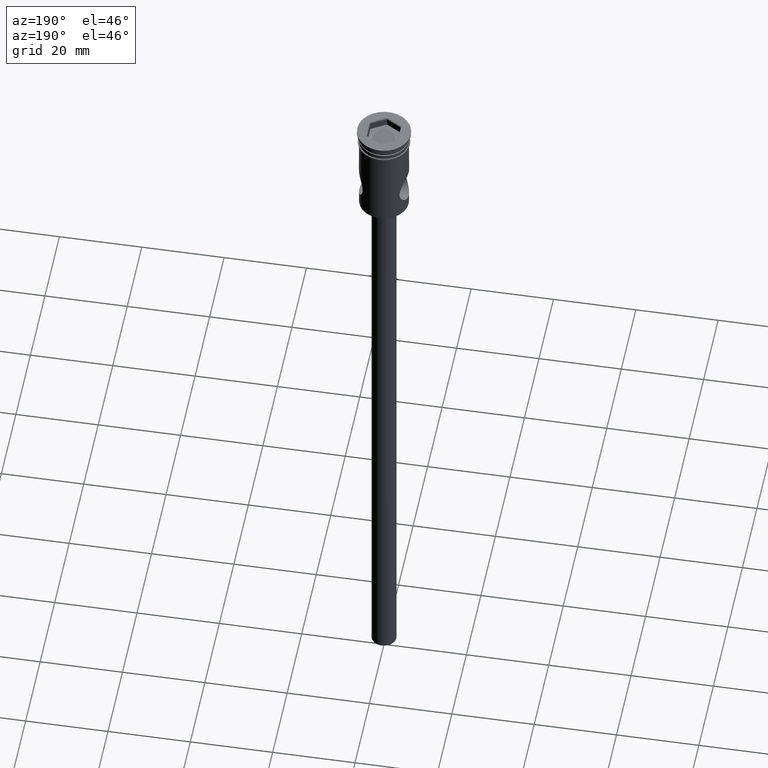
[diagram: clean part render]
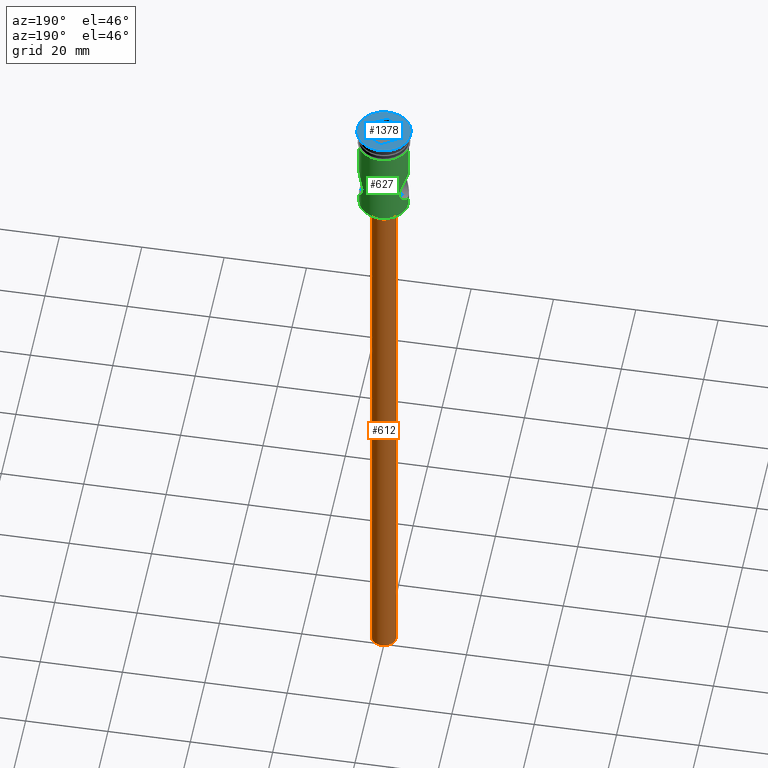
[diagram: same view with three faces highlighted in distinct colors, each labeled with its STEP entity id]
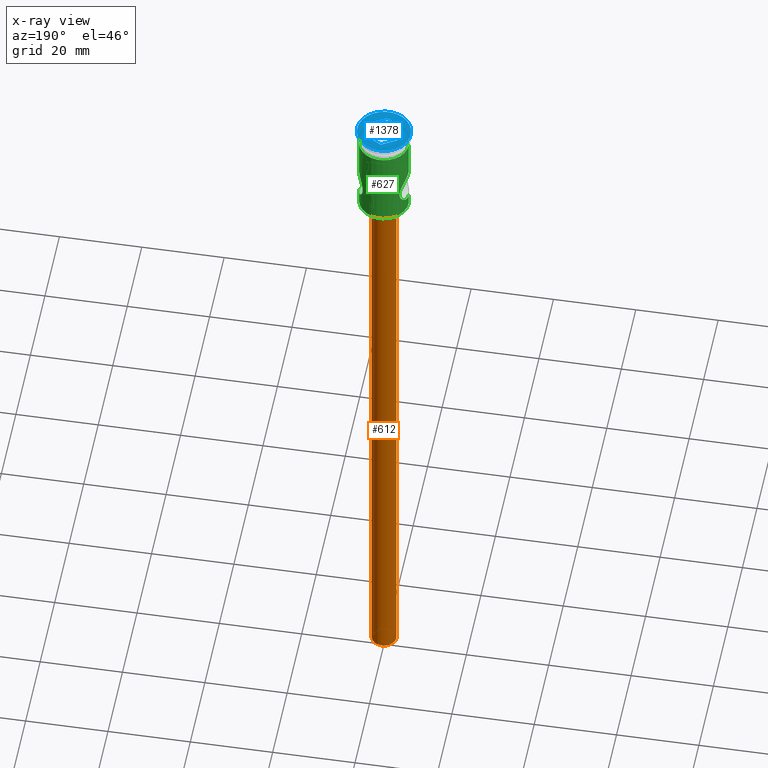
[diagram: x-ray of the same camera — body ghosted, the three highlighted faces saturated]
A machine part, auxiliary view with three faces highlighted in distinct colors.
The next image is the same camera in x-ray (body ghosted, the three faces saturated) — at least one of them is partly hidden behind the body in this view.
Their STEP definitions:

[orange] entity #612 — the highlighted cylindrical surface (edge-blend (fillet) strip) has radius 3 mm, axis along (-0, -0, 1).
#10 = DIRECTION ( 'NONE',  ( -1.000000000000000000, 0.000000000000000000, 0.000000000000000000 ) ) ;
#25 = CARTESIAN_POINT ( 'NONE',  ( 0.000000000000000000, 0.000000000000000000, -27.00000000000000000 ) ) ;
#69 = CARTESIAN_POINT ( 'NONE',  ( 0.000000000000000000, 0.000000000000000000, -174.0000000000000000 ) ) ;
#101 = ORIENTED_EDGE ( 'NONE', *, *, #1307, .F. ) ;
#259 = AXIS2_PLACEMENT_3D ( 'NONE', #25, #680, #10 ) ;
#265 = LINE ( 'NONE', #841, #981 ) ;
#309 = EDGE_LOOP ( 'NONE', ( #944, #556, #578, #101 ) ) ;
#332 = CIRCLE ( 'NONE', #259, 3.000000000000000444 ) ;
#386 = CYLINDRICAL_SURFACE ( 'NONE', #1319, 3.000000000000000444 ) ;
#394 = EDGE_CURVE ( 'NONE', #1001, #1064, #746, .T. ) ;
#399 = DIRECTION ( 'NONE',  ( 0.000000000000000000, 0.000000000000000000, -1.000000000000000000 ) ) ;
#488 = EDGE_CURVE ( 'NONE', #1064, #1245, #332, .T. ) ;
#489 = DIRECTION ( 'NONE',  ( 1.000000000000000000, 0.000000000000000000, 0.000000000000000000 ) ) ;
#499 = VECTOR ( 'NONE', #540, 1000.000000000000000 ) ;
#540 = DIRECTION ( 'NONE',  ( -0.000000000000000000, -0.000000000000000000, 1.000000000000000000 ) ) ;
#556 = ORIENTED_EDGE ( 'NONE', *, *, #394, .T. ) ;
#578 = ORIENTED_EDGE ( 'NONE', *, *, #488, .T. ) ;
#580 = FACE_OUTER_BOUND ( 'NONE', #309, .T. ) ;
#612 = ADVANCED_FACE ( 'NONE', ( #580 ), #386, .T. ) ;
#680 = DIRECTION ( 'NONE',  ( 0.000000000000000000, 0.000000000000000000, -1.000000000000000000 ) ) ;
#696 = VERTEX_POINT ( 'NONE', #947 ) ;
#746 = LINE ( 'NONE', #985, #499 ) ;
#841 = CARTESIAN_POINT ( 'NONE',  ( 3.000000000000000444, 0.000000000000000000, -174.0000000000000000 ) ) ;
#944 = ORIENTED_EDGE ( 'NONE', *, *, #1409, .F. ) ;
#947 = CARTESIAN_POINT ( 'NONE',  ( 3.000000000000000444, 0.000000000000000000, -174.0000000000000000 ) ) ;
#981 = VECTOR ( 'NONE', #1412, 1000.000000000000000 ) ;
#985 = CARTESIAN_POINT ( 'NONE',  ( -3.000000000000000444, 3.673940397442060361E-16, -174.0000000000000000 ) ) ;
#1001 = VERTEX_POINT ( 'NONE', #1303 ) ;
#1064 = VERTEX_POINT ( 'NONE', #1240 ) ;
#1065 = CARTESIAN_POINT ( 'NONE',  ( 3.000000000000000444, 0.000000000000000000, -27.00000000000000000 ) ) ;
#1106 = DIRECTION ( 'NONE',  ( -1.000000000000000000, 0.000000000000000000, 0.000000000000000000 ) ) ;
#1130 = CIRCLE ( 'NONE', #1320, 3.000000000000000444 ) ;
#1194 = DIRECTION ( 'NONE',  ( -0.000000000000000000, -0.000000000000000000, 1.000000000000000000 ) ) ;
#1240 = CARTESIAN_POINT ( 'NONE',  ( -3.000000000000000444, 3.673940397442060361E-16, -27.00000000000000000 ) ) ;
#1245 = VERTEX_POINT ( 'NONE', #1065 ) ;
#1303 = CARTESIAN_POINT ( 'NONE',  ( -3.000000000000000444, 3.673940397442060361E-16, -174.0000000000000000 ) ) ;
#1307 = EDGE_CURVE ( 'NONE', #696, #1245, #265, .T. ) ;
#1319 = AXIS2_PLACEMENT_3D ( 'NONE', #69, #1194, #489 ) ;
#1320 = AXIS2_PLACEMENT_3D ( 'NONE', #1442, #399, #1106 ) ;
#1409 = EDGE_CURVE ( 'NONE', #1001, #696, #1130, .T. ) ;
#1412 = DIRECTION ( 'NONE',  ( -0.000000000000000000, -0.000000000000000000, 1.000000000000000000 ) ) ;
#1442 = CARTESIAN_POINT ( 'NONE',  ( 0.000000000000000000, 0.000000000000000000, -174.0000000000000000 ) ) ;

[blue] entity #1378 — the highlighted planar face has unit normal (0, -0, 1).
#8 = CARTESIAN_POINT ( 'NONE',  ( 0.000000000000000000, 0.000000000000000000, 0.000000000000000000 ) ) ;
#14 = EDGE_LOOP ( 'NONE', ( #299, #769, #1452, #1261, #191, #542 ) ) ;
#42 = VECTOR ( 'NONE', #743, 1000.000000000000000 ) ;
#67 = DIRECTION ( 'NONE',  ( -2.030154863158322842E-16, -1.000000000000000000, 0.000000000000000000 ) ) ;
#77 = CARTESIAN_POINT ( 'NONE',  ( -3.899999999999994138, 2.251666049839537109, 0.000000000000000000 ) ) ;
#79 = FACE_OUTER_BOUND ( 'NONE', #1456, .T. ) ;
#90 = LINE ( 'NONE', #189, #1169 ) ;
#102 = CIRCLE ( 'NONE', #873, 6.500000000000000000 ) ;
#106 = AXIS2_PLACEMENT_3D ( 'NONE', #1347, #193, #1095 ) ;
#140 = ORIENTED_EDGE ( 'NONE', *, *, #843, .T. ) ;
#145 = AXIS2_PLACEMENT_3D ( 'NONE', #761, #523, #648 ) ;
#189 = CARTESIAN_POINT ( 'NONE',  ( 0.09999999999999689693, -4.445597072760113733, 0.000000000000000000 ) ) ;
#191 = ORIENTED_EDGE ( 'NONE', *, *, #1263, .T. ) ;
#193 = DIRECTION ( 'NONE',  ( 0.000000000000000000, -0.000000000000000000, 1.000000000000000000 ) ) ;
#225 = CARTESIAN_POINT ( 'NONE',  ( 3.899999999999994138, 2.251666049839536665, 0.000000000000000000 ) ) ;
#233 = VERTEX_POINT ( 'NONE', #77 ) ;
#236 = VERTEX_POINT ( 'NONE', #513 ) ;
#246 = CARTESIAN_POINT ( 'NONE',  ( 3.799999999999997602, 2.309401076758497595, 0.000000000000000000 ) ) ;
#298 = ORIENTED_EDGE ( 'NONE', *, *, #373, .T. ) ;
#299 = ORIENTED_EDGE ( 'NONE', *, *, #1088, .T. ) ;
#301 = EDGE_CURVE ( 'NONE', #628, #1185, #90, .T. ) ;
#373 = EDGE_CURVE ( 'NONE', #236, #555, #1060, .T. ) ;
#378 = LINE ( 'NONE', #952, #655 ) ;
#400 = LINE ( 'NONE', #882, #42 ) ;
#452 = VERTEX_POINT ( 'NONE', #1284 ) ;
#470 = VERTEX_POINT ( 'NONE', #225 ) ;
#513 = CARTESIAN_POINT ( 'NONE',  ( -6.500000000000000000, 7.960204194457795477E-16, 0.000000000000000000 ) ) ;
#523 = DIRECTION ( 'NONE',  ( -0.000000000000000000, -0.000000000000000000, 1.000000000000000000 ) ) ;
#536 = PLANE ( 'NONE',  #106 ) ;
#542 = ORIENTED_EDGE ( 'NONE', *, *, #301, .T. ) ;
#546 = EDGE_CURVE ( 'NONE', #452, #470, #1059, .T. ) ;
#555 = VERTEX_POINT ( 'NONE', #1266 ) ;
#628 = VERTEX_POINT ( 'NONE', #733 ) ;
#648 = DIRECTION ( 'NONE',  ( 1.000000000000000000, 0.000000000000000000, 0.000000000000000000 ) ) ;
#655 = VECTOR ( 'NONE', #1186, 1000.000000000000114 ) ;
#667 = DIRECTION ( 'NONE',  ( -0.8660254037844388186, -0.4999999999999997780, 0.000000000000000000 ) ) ;
#679 = DIRECTION ( 'NONE',  ( -0.000000000000000000, -0.000000000000000000, 1.000000000000000000 ) ) ;
#733 = CARTESIAN_POINT ( 'NONE',  ( 3.899999999999993250, -2.251666049839539330, 0.000000000000000000 ) ) ;
#742 = FACE_BOUND ( 'NONE', #14, .T. ) ;
#743 = DIRECTION ( 'NONE',  ( -0.8660254037844387076, 0.4999999999999998890, 0.000000000000000000 ) ) ;
#751 = VECTOR ( 'NONE', #1384, 1000.000000000000000 ) ;
#761 = CARTESIAN_POINT ( 'NONE',  ( 0.000000000000000000, 0.000000000000000000, 0.000000000000000000 ) ) ;
#769 = ORIENTED_EDGE ( 'NONE', *, *, #967, .T. ) ;
#809 = DIRECTION ( 'NONE',  ( 1.000000000000000000, 0.000000000000000000, 0.000000000000000000 ) ) ;
#843 = EDGE_CURVE ( 'NONE', #555, #236, #102, .T. ) ;
#873 = AXIS2_PLACEMENT_3D ( 'NONE', #8, #679, #809 ) ;
#875 = VECTOR ( 'NONE', #67, 1000.000000000000000 ) ;
#882 = CARTESIAN_POINT ( 'NONE',  ( -3.799999999999998046, -2.309401076758498039, 0.000000000000000000 ) ) ;
#892 = CARTESIAN_POINT ( 'NONE',  ( 5.124951389194159977E-16, -4.503332099679074219, 0.000000000000000000 ) ) ;
#952 = CARTESIAN_POINT ( 'NONE',  ( -0.09999999999999756306, 4.445597072760112844, 0.000000000000000000 ) ) ;
#954 = EDGE_CURVE ( 'NONE', #233, #452, #378, .T. ) ;
#967 = EDGE_CURVE ( 'NONE', #1404, #233, #1072, .T. ) ;
#968 = DIRECTION ( 'NONE',  ( 0.000000000000000000, 1.000000000000000000, 0.000000000000000000 ) ) ;
#994 = CARTESIAN_POINT ( 'NONE',  ( -3.899999999999994138, -2.251666049839537553, 0.000000000000000000 ) ) ;
#1058 = VECTOR ( 'NONE', #968, 1000.000000000000000 ) ;
#1059 = LINE ( 'NONE', #246, #751 ) ;
#1060 = CIRCLE ( 'NONE', #145, 6.500000000000000000 ) ;
#1072 = LINE ( 'NONE', #1399, #1058 ) ;
#1083 = LINE ( 'NONE', #1288, #875 ) ;
#1088 = EDGE_CURVE ( 'NONE', #1185, #1404, #400, .T. ) ;
#1095 = DIRECTION ( 'NONE',  ( 1.000000000000000000, 0.000000000000000000, 0.000000000000000000 ) ) ;
#1169 = VECTOR ( 'NONE', #667, 1000.000000000000114 ) ;
#1185 = VERTEX_POINT ( 'NONE', #892 ) ;
#1186 = DIRECTION ( 'NONE',  ( 0.8660254037844385966, 0.4999999999999999445, 0.000000000000000000 ) ) ;
#1261 = ORIENTED_EDGE ( 'NONE', *, *, #546, .T. ) ;
#1263 = EDGE_CURVE ( 'NONE', #470, #628, #1083, .T. ) ;
#1266 = CARTESIAN_POINT ( 'NONE',  ( 6.500000000000000000, 0.000000000000000000, 0.000000000000000000 ) ) ;
#1284 = CARTESIAN_POINT ( 'NONE',  ( -1.088215527527321583E-15, 4.503332099679073330, 0.000000000000000000 ) ) ;
#1288 = CARTESIAN_POINT ( 'NONE',  ( 3.899999999999993250, -2.136195996001616138, 0.000000000000000000 ) ) ;
#1347 = CARTESIAN_POINT ( 'NONE',  ( 0.000000000000000000, 0.000000000000000000, 0.000000000000000000 ) ) ;
#1378 = ADVANCED_FACE ( 'NONE', ( #742, #79 ), #536, .T. ) ;
#1384 = DIRECTION ( 'NONE',  ( 0.8660254037844387076, -0.4999999999999998335, 0.000000000000000000 ) ) ;
#1399 = CARTESIAN_POINT ( 'NONE',  ( -3.899999999999994138, 2.136195996001614361, 0.000000000000000000 ) ) ;
#1404 = VERTEX_POINT ( 'NONE', #994 ) ;
#1452 = ORIENTED_EDGE ( 'NONE', *, *, #954, .T. ) ;
#1456 = EDGE_LOOP ( 'NONE', ( #140, #298 ) ) ;

[green] entity #627 — the highlighted cylindrical surface (edge-blend (fillet) strip) has radius 6 mm, axis along (-0, -0, 1).
#5 = VECTOR ( 'NONE', #272, 1000.000000000000000 ) ;
#9 = EDGE_CURVE ( 'NONE', #439, #923, #421, .T. ) ;
#15 = CARTESIAN_POINT ( 'NONE',  ( 4.472242783135714106, 3.999880562432159614, -17.13916142668632858 ) ) ;
#37 = CARTESIAN_POINT ( 'NONE',  ( 5.909734172871756286, 1.070628588321906216, -13.13649990372544885 ) ) ;
#40 = CARTESIAN_POINT ( 'NONE',  ( -5.094941177298608181, 3.173493986384487542, -19.44836001449217733 ) ) ;
#49 = CARTESIAN_POINT ( 'NONE',  ( 5.999999999999997335, 0.000000000000000000, -21.00000000000000355 ) ) ;
#57 = EDGE_CURVE ( 'NONE', #172, #748, #995, .T. ) ;
#66 = VERTEX_POINT ( 'NONE', #1155 ) ;
#68 = DIRECTION ( 'NONE',  ( -0.000000000000000000, -0.000000000000000000, 1.000000000000000000 ) ) ;
#96 = EDGE_CURVE ( 'NONE', #700, #172, #1051, .T. ) ;
#114 = CARTESIAN_POINT ( 'NONE',  ( 5.649252793255032934, 2.034506580944977827, -20.45365450866940193 ) ) ;
#116 = ORIENTED_EDGE ( 'NONE', *, *, #96, .F. ) ;
#117 = CARTESIAN_POINT ( 'NONE',  ( -5.649709804834211369, 2.033012498713174576, -20.45435978024745438 ) ) ;
#122 = CARTESIAN_POINT ( 'NONE',  ( 5.999999999999997335, 0.000000000000000000, -21.00000000000000355 ) ) ;
#125 = CARTESIAN_POINT ( 'NONE',  ( -4.815345988703960245, 3.581725270876521705, -18.79943117160748400 ) ) ;
#130 = CARTESIAN_POINT ( 'NONE',  ( -5.726042320256659046, 1.810021776766353563, -13.42313354859388497 ) ) ;
#134 = CARTESIAN_POINT ( 'NONE',  ( 5.383168773068585544, 2.657528158016941866, -20.00025070472699440 ) ) ;
#135 = CARTESIAN_POINT ( 'NONE',  ( -4.812980838828971208, 3.584886833645904769, -15.20686804412651760 ) ) ;
#138 = DIRECTION ( 'NONE',  ( 1.000000000000000000, 0.000000000000000000, 0.000000000000000000 ) ) ;
#144 = CARTESIAN_POINT ( 'NONE',  ( 5.383657517074641241, 2.656633614838565194, -13.99882376761189029 ) ) ;
#151 = CARTESIAN_POINT ( 'NONE',  ( 5.191140967328530031, 3.015547360259486442, -14.35969034782403853 ) ) ;
#167 = FACE_OUTER_BOUND ( 'NONE', #1054, .T. ) ;
#172 = VERTEX_POINT ( 'NONE', #207 ) ;
#207 = CARTESIAN_POINT ( 'NONE',  ( 6.000000000000000000, 0.000000000000000000, -3.799999999999998490 ) ) ;
#211 = CARTESIAN_POINT ( 'NONE',  ( -6.000000000000000000, 7.347880794884119736E-16, -3.799999999999998490 ) ) ;
#219 = CARTESIAN_POINT ( 'NONE',  ( -5.383857059222176389, 2.656136703825481504, -20.00147985586160004 ) ) ;
#240 = CARTESIAN_POINT ( 'NONE',  ( -4.590872927876621823, 3.863799755992654905, -18.06881075205813403 ) ) ;
#243 = DIRECTION ( 'NONE',  ( -0.000000000000000000, -0.000000000000000000, 1.000000000000000000 ) ) ;
#244 = CARTESIAN_POINT ( 'NONE',  ( 4.904969006695426792, 3.459781783056854465, -19.02337662573056321 ) ) ;
#245 = CARTESIAN_POINT ( 'NONE',  ( -5.092437400807711789, 3.177449308448081489, -14.55690956341038245 ) ) ;
#250 = CARTESIAN_POINT ( 'NONE',  ( 4.471926352484667966, 4.000234342895624629, -16.73210661165612123 ) ) ;
#257 = CARTESIAN_POINT ( 'NONE',  ( -5.999999999999997335, 7.347880794884116778E-16, 0.000000000000000000 ) ) ;
#262 = DIRECTION ( 'NONE',  ( 1.000000000000000000, 0.000000000000000000, 0.000000000000000000 ) ) ;
#272 = DIRECTION ( 'NONE',  ( -0.000000000000000000, -0.000000000000000000, 1.000000000000000000 ) ) ;
#275 = CARTESIAN_POINT ( 'NONE',  ( -5.856852607584092318, 1.326405963621358985, -20.78272040109924745 ) ) ;
#281 = CARTESIAN_POINT ( 'NONE',  ( 5.977293684551372444, 0.5386543696670914594, -13.03412758888618939 ) ) ;
#284 = VECTOR ( 'NONE', #68, 1000.000000000000000 ) ;
#327 = CARTESIAN_POINT ( 'NONE',  ( -5.192588128681414616, 3.012973207551337129, -19.64309212195293952 ) ) ;
#338 = CARTESIAN_POINT ( 'NONE',  ( -4.566410052139553422, 3.892191516930989970, -16.06790164049536074 ) ) ;
#345 = CARTESIAN_POINT ( 'NONE',  ( -5.999999999999997335, 7.346847929928983029E-16, -13.00000000000000178 ) ) ;
#353 = CARTESIAN_POINT ( 'NONE',  ( -4.695721265758814766, 3.735538961856250673, -15.56388279734573032 ) ) ;
#357 = VERTEX_POINT ( 'NONE', #657 ) ;
#370 = CARTESIAN_POINT ( 'NONE',  ( -5.999999999999999112, 0.2733318867810531350, -21.00000000000000000 ) ) ;
#393 = CARTESIAN_POINT ( 'NONE',  ( 4.496571596818668581, 3.973146032982571185, -16.46466415118837645 ) ) ;
#421 = LINE ( 'NONE', #1402, #5 ) ;
#439 = VERTEX_POINT ( 'NONE', #1170 ) ;
#446 = CARTESIAN_POINT ( 'NONE',  ( 5.726993910597675708, 1.806673378235915450, -20.57837121075087694 ) ) ;
#481 = CARTESIAN_POINT ( 'NONE',  ( -4.471969905858020233, 4.000185648662160531, -16.72948623710962224 ) ) ;
#485 = CARTESIAN_POINT ( 'NONE',  ( 5.647456945233584769, 2.039167636317595456, -13.54932708310013645 ) ) ;
#539 = CIRCLE ( 'NONE', #707, 5.999999999999997335 ) ;
#549 = CARTESIAN_POINT ( 'NONE',  ( 4.591041808995887763, 3.863597314276563388, -18.06934695620068965 ) ) ;
#557 = CARTESIAN_POINT ( 'NONE',  ( 5.476259375248750061, 2.462490082215233578, -20.16276605017705492 ) ) ;
#559 = CARTESIAN_POINT ( 'NONE',  ( -5.189877563605834965, 3.017637752822129205, -14.36220871751616635 ) ) ;
#566 = CARTESIAN_POINT ( 'NONE',  ( 5.191849950367996236, 3.014242200430726992, -19.64164800058794214 ) ) ;
#579 = CARTESIAN_POINT ( 'NONE',  ( -5.647852088979878005, 2.038182248857265844, -13.54866401616081362 ) ) ;
#596 = CARTESIAN_POINT ( 'NONE',  ( 5.857601659980624653, 1.323462767520508176, -13.21610827440704128 ) ) ;
#599 = CARTESIAN_POINT ( 'NONE',  ( -5.999999999999997335, 7.347880794884116778E-16, 0.000000000000000000 ) ) ;
#615 = CARTESIAN_POINT ( 'NONE',  ( 5.476434227958205447, 2.461837270032280145, -13.83697842493742947 ) ) ;
#620 = DIRECTION ( 'NONE',  ( -0.000000000000000000, -0.000000000000000000, 1.000000000000000000 ) ) ;
#627 = ADVANCED_FACE ( 'NONE', ( #167 ), #953, .T. ) ;
#657 = CARTESIAN_POINT ( 'NONE',  ( -5.999999999999997335, 0.000000000000000000, -21.00000000000000000 ) ) ;
#665 = CARTESIAN_POINT ( 'NONE',  ( -5.478456530086702081, 2.457412205291201968, -20.16652278763330486 ) ) ;
#670 = ORIENTED_EDGE ( 'NONE', *, *, #57, .F. ) ;
#671 = CARTESIAN_POINT ( 'NONE',  ( 4.478683235531862650, 3.992711086781057350, -17.27669624262845005 ) ) ;
#682 = DIRECTION ( 'NONE',  ( -0.000000000000000000, -0.000000000000000000, 1.000000000000000000 ) ) ;
#693 = CARTESIAN_POINT ( 'NONE',  ( 4.658800709564930642, 3.783111596241941488, -18.32471878455886838 ) ) ;
#699 = AXIS2_PLACEMENT_3D ( 'NONE', #1163, #682, #138 ) ;
#700 = VERTEX_POINT ( 'NONE', #1297 ) ;
#701 = ORIENTED_EDGE ( 'NONE', *, *, #9, .F. ) ;
#702 = CARTESIAN_POINT ( 'NONE',  ( 4.655957912614350214, 3.786615440986035974, -15.68502588106870199 ) ) ;
#707 = AXIS2_PLACEMENT_3D ( 'NONE', #1131, #1453, #1224 ) ;
#716 = CARTESIAN_POINT ( 'NONE',  ( 5.999999999999999112, 0.1348394930680404946, -13.00000000000000355 ) ) ;
#728 = DIRECTION ( 'NONE',  ( -0.000000000000000000, -0.000000000000000000, 1.000000000000000000 ) ) ;
#748 = VERTEX_POINT ( 'NONE', #211 ) ;
#767 = EDGE_CURVE ( 'NONE', #439, #66, #539, .T. ) ;
#783 = CARTESIAN_POINT ( 'NONE',  ( 4.503329929757906136, 3.964891535778145570, -17.54583673630848750 ) ) ;
#789 = ORIENTED_EDGE ( 'NONE', *, *, #1232, .F. ) ;
#792 = CARTESIAN_POINT ( 'NONE',  ( -5.909894408226808338, 1.069461442341117507, -13.13625666965422134 ) ) ;
#801 = CARTESIAN_POINT ( 'NONE',  ( -4.496976719000948641, 3.972684566356397440, -16.46183091757618655 ) ) ;
#815 = CARTESIAN_POINT ( 'NONE',  ( 5.726539468168462044, 1.808257897405588066, -13.42234802356430556 ) ) ;
#828 = VECTOR ( 'NONE', #728, 1000.000000000000000 ) ;
#830 = LINE ( 'NONE', #599, #284 ) ;
#860 = ORIENTED_EDGE ( 'NONE', *, *, #909, .T. ) ;
#881 = EDGE_CURVE ( 'NONE', #993, #357, #1016, .T. ) ;
#902 = CARTESIAN_POINT ( 'NONE',  ( 5.092719808373194823, 3.176950723007529120, -19.44358897106424067 ) ) ;
#909 = EDGE_CURVE ( 'NONE', #66, #357, #830, .T. ) ;
#921 = CARTESIAN_POINT ( 'NONE',  ( -5.476104105474132844, 2.462661959051749783, -13.83753213007002181 ) ) ;
#923 = VERTEX_POINT ( 'NONE', #49 ) ;
#928 = CARTESIAN_POINT ( 'NONE',  ( -4.658564655011904421, 3.783396392401493724, -18.32386562586674827 ) ) ;
#935 = CARTESIAN_POINT ( 'NONE',  ( 5.999999999999997335, 1.032865049536733409E-19, -13.00000000000000178 ) ) ;
#953 = CYLINDRICAL_SURFACE ( 'NONE', #1296, 5.999999999999997335 ) ;
#961 = CARTESIAN_POINT ( 'NONE',  ( -5.726721313513245981, 1.807412029573770118, -20.57793071042114619 ) ) ;
#966 = CARTESIAN_POINT ( 'NONE',  ( 4.589371484154252556, 3.865580797907775423, -15.93709879797100193 ) ) ;
#992 = ORIENTED_EDGE ( 'NONE', *, *, #881, .F. ) ;
#993 = VERTEX_POINT ( 'NONE', #1078 ) ;
#995 = CIRCLE ( 'NONE', #699, 6.000000000000000000 ) ;
#1016 = B_SPLINE_CURVE_WITH_KNOTS ( 'NONE', 3,
 ( #345, #1258, #1366, #792, #1040, #130, #579, #921, #1144, #559, #245, #1383, #135, #353, #1136, #1282, #338, #801, #481, #1023, #1274, #240, #928, #125, #1391, #40, #327, #219, #665, #117, #961, #275, #1193, #1294, #370, #1067 ),
 .UNSPECIFIED., .F., .F.,
 ( 4, 2, 2, 2, 2, 2, 2, 2, 2, 2, 2, 2, 2, 2, 2, 2, 2, 4 ),
 ( 0.01292789089967558668, 0.01373481658167571492, 0.01454174226367584317, 0.01534866794567596969, 0.01615559362767609794, 0.01696251930967622445, 0.01776944499167635444, 0.01817290783267641943, 0.01857637067367648442, 0.01938329635567661441, 0.02019022203767674092, 0.02099714771967687091, 0.02180407340167700089, 0.02261099908367712741, 0.02341792476567725739, 0.02422485044767738738, 0.02503177612967751736, 0.02583870181167764735 ),
 .UNSPECIFIED. ) ;
#1023 = CARTESIAN_POINT ( 'NONE',  ( -4.472303672293369559, 3.999812486286544289, -17.27597643780235259 ) ) ;
#1031 = CARTESIAN_POINT ( 'NONE',  ( 4.815777407978871771, 3.581151401136684953, -18.80060207983888887 ) ) ;
#1040 = CARTESIAN_POINT ( 'NONE',  ( -5.857856019569840811, 1.322596816769210371, -13.21570480751897314 ) ) ;
#1043 = CARTESIAN_POINT ( 'NONE',  ( 5.999999999999997335, 0.000000000000000000, 0.000000000000000000 ) ) ;
#1051 = LINE ( 'NONE', #1043, #1265 ) ;
#1054 = EDGE_LOOP ( 'NONE', ( #1227, #860, #992, #1448, #670, #116, #789, #701 ) ) ;
#1067 = CARTESIAN_POINT ( 'NONE',  ( -5.999999999999997335, 0.000000000000000000, -21.00000000000000000 ) ) ;
#1078 = CARTESIAN_POINT ( 'NONE',  ( -5.999999999999997335, 7.346847929928983029E-16, -13.00000000000000178 ) ) ;
#1131 = CARTESIAN_POINT ( 'NONE',  ( 0.000000000000000000, 0.000000000000000000, -23.80000000000000782 ) ) ;
#1136 = CARTESIAN_POINT ( 'NONE',  ( -4.659573210257435427, 3.780337466250410561, -15.68607491293214729 ) ) ;
#1144 = CARTESIAN_POINT ( 'NONE',  ( -5.381440153112927227, 2.661027735845785891, -14.00283269631731109 ) ) ;
#1155 = CARTESIAN_POINT ( 'NONE',  ( -5.999999999999997335, 7.347880794884116778E-16, -23.80000000000000782 ) ) ;
#1158 = CARTESIAN_POINT ( 'NONE',  ( 5.910558363407836246, 1.065472474882099840, -20.86475527808674713 ) ) ;
#1163 = CARTESIAN_POINT ( 'NONE',  ( 0.000000000000000000, 0.000000000000000000, -3.799999999999998490 ) ) ;
#1165 = CARTESIAN_POINT ( 'NONE',  ( 5.981377723958400061, 0.5413430384848008092, -20.97221760090189591 ) ) ;
#1170 = CARTESIAN_POINT ( 'NONE',  ( 5.999999999999997335, 0.000000000000000000, -23.80000000000000782 ) ) ;
#1176 = CARTESIAN_POINT ( 'NONE',  ( 5.092532074683503218, 3.177271535275488112, -14.55676189133447451 ) ) ;
#1183 = CARTESIAN_POINT ( 'NONE',  ( 5.963516332756118032, 0.6739983983561916858, -13.05488329690675364 ) ) ;
#1192 = CARTESIAN_POINT ( 'NONE',  ( 4.813287987224462938, 3.584502662014734664, -15.20585560854699558 ) ) ;
#1193 = CARTESIAN_POINT ( 'NONE',  ( -5.910224399078535029, 1.067455424808948061, -20.86424616908553276 ) ) ;
#1197 = CARTESIAN_POINT ( 'NONE',  ( 5.995459719443724467, 0.2695386314927124549, -13.00680060135633376 ) ) ;
#1224 = DIRECTION ( 'NONE',  ( -1.000000000000000000, 0.000000000000000000, 0.000000000000000000 ) ) ;
#1227 = ORIENTED_EDGE ( 'NONE', *, *, #767, .T. ) ;
#1232 = EDGE_CURVE ( 'NONE', #923, #700, #1354, .T. ) ;
#1258 = CARTESIAN_POINT ( 'NONE',  ( -5.999999999999998224, 0.2693226933892789443, -13.00000000000000178 ) ) ;
#1265 = VECTOR ( 'NONE', #243, 1000.000000000000000 ) ;
#1271 = CARTESIAN_POINT ( 'NONE',  ( 5.999999999999996447, 0.2736934833754733898, -21.00000000000001066 ) ) ;
#1274 = CARTESIAN_POINT ( 'NONE',  ( -4.497954016143988376, 3.971583117973677801, -17.54574033674491318 ) ) ;
#1281 = CARTESIAN_POINT ( 'NONE',  ( 5.857462785930378502, 1.323879775164644279, -20.78366906037870621 ) ) ;
#1282 = CARTESIAN_POINT ( 'NONE',  ( -4.594981970458708709, 3.858589710197853240, -15.93762721160692664 ) ) ;
#1293 = LINE ( 'NONE', #257, #828 ) ;
#1294 = CARTESIAN_POINT ( 'NONE',  ( -5.981315622377779029, 0.5422886287917135784, -20.97212570072114346 ) ) ;
#1296 = AXIS2_PLACEMENT_3D ( 'NONE', #1408, #620, #262 ) ;
#1297 = CARTESIAN_POINT ( 'NONE',  ( 5.999999999999997335, 1.032865049536733409E-19, -13.00000000000000178 ) ) ;
#1315 = EDGE_CURVE ( 'NONE', #993, #748, #1293, .T. ) ;
#1354 = B_SPLINE_CURVE_WITH_KNOTS ( 'NONE', 3,
 ( #122, #1271, #1165, #1158, #1281, #446, #114, #557, #134, #566, #902, #244, #1031, #693, #549, #1364, #783, #671, #15, #250, #393, #966, #702, #1192, #1419, #1176, #151, #144, #615, #485, #815, #596, #37, #1183, #281, #1197, #716, #935 ),
 .UNSPECIFIED., .F., .F.,
 ( 4, 2, 2, 2, 2, 2, 2, 2, 2, 2, 2, 2, 2, 2, 2, 2, 2, 2, 4 ),
 ( 0.000000000000000000, 0.0008079931812297244925, 0.001615986362459448551, 0.002423979543689172393, 0.003231972724918896669, 0.004039965906148620944, 0.004847959087378344786, 0.005655952268608070363, 0.006059948859222932284, 0.006463945449837794205, 0.007271938631067518047, 0.008079931812297241889, 0.008887924993526967465, 0.009695918174756691307, 0.01050391135598641688, 0.01131190453721614073, 0.01211989771844586630, 0.01252389430906072736, 0.01292789089967558841 ),
 .UNSPECIFIED. ) ;
#1364 = CARTESIAN_POINT ( 'NONE',  ( 4.521451790501867407, 3.944329598407792847, -17.67822252913732228 ) ) ;
#1366 = CARTESIAN_POINT ( 'NONE',  ( -5.981295349059706723, 0.5428679769166538938, -13.02790298971888028 ) ) ;
#1383 = CARTESIAN_POINT ( 'NONE',  ( -4.903670365680999232, 3.461664301119384834, -14.97966456857567685 ) ) ;
#1391 = CARTESIAN_POINT ( 'NONE',  ( -4.905092851350609351, 3.459704293921746832, -19.02385203036241279 ) ) ;
#1402 = CARTESIAN_POINT ( 'NONE',  ( 5.999999999999997335, 0.000000000000000000, 0.000000000000000000 ) ) ;
#1408 = CARTESIAN_POINT ( 'NONE',  ( 0.000000000000000000, 0.000000000000000000, 0.000000000000000000 ) ) ;
#1419 = CARTESIAN_POINT ( 'NONE',  ( 4.904334778770656378, 3.460699021627383409, -14.97811247933654322 ) ) ;
#1448 = ORIENTED_EDGE ( 'NONE', *, *, #1315, .T. ) ;
#1453 = DIRECTION ( 'NONE',  ( -0.000000000000000000, -0.000000000000000000, 1.000000000000000000 ) ) ;